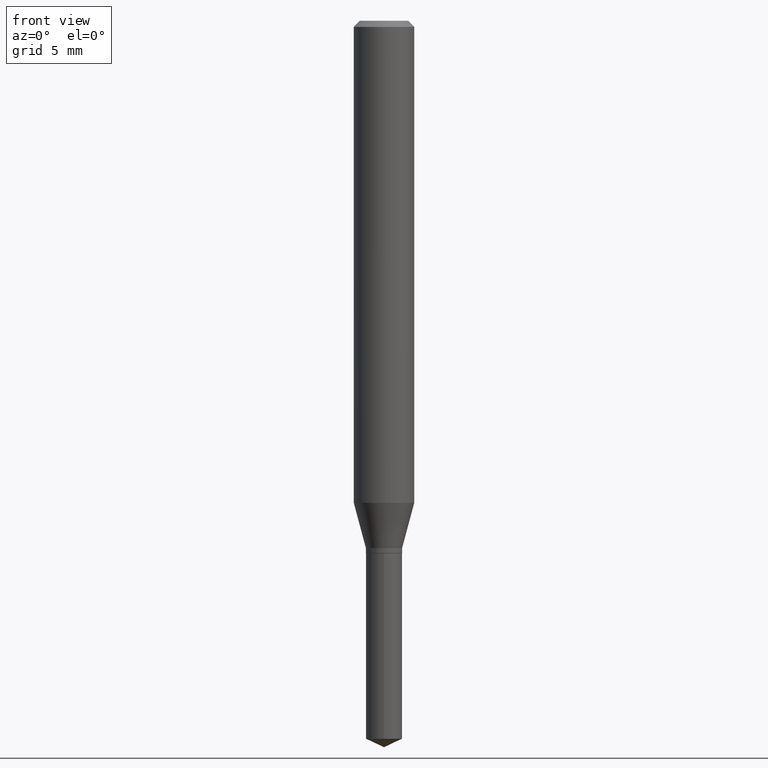
[diagram: clean part render]
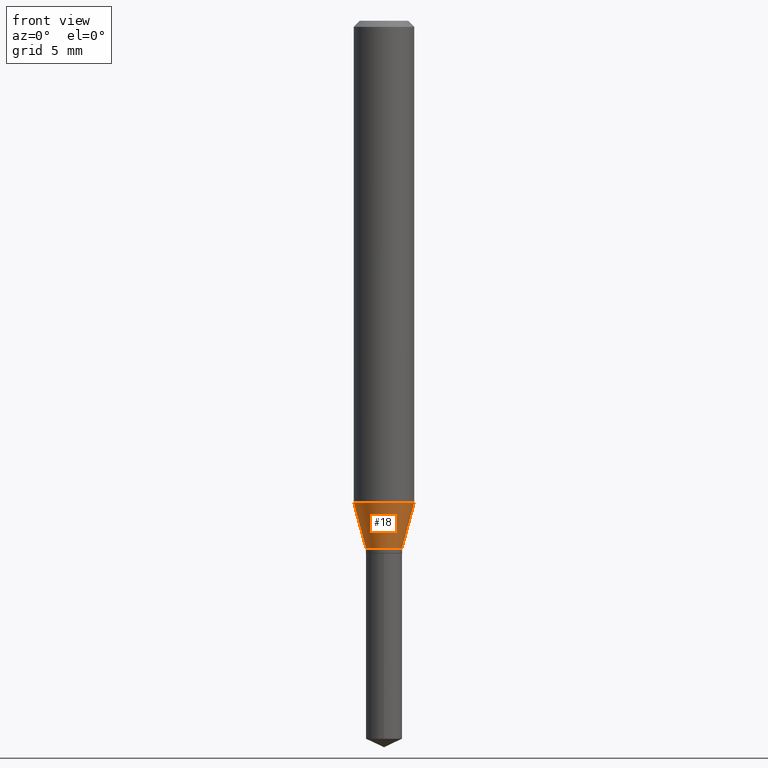
[diagram: same view with one face highlighted and labeled with its STEP entity id]
A machine part, front view. The second image highlights one B-rep face of the part: STEP entity #18.
In plain terms, the highlighted conical surface has half-angle 15 deg.
Its self-contained STEP definition (entity closure, byte-faithful):
#5 = EDGE_CURVE ( 'NONE', #321, #427, #157, .T. ) ;
#11 = CARTESIAN_POINT ( 'NONE',  ( 0.03740000000000000269, -4.062687685877884033E-15, -1.088800000000000212 ) ) ;
#18 = ADVANCED_FACE ( 'NONE', ( #256 ), #304, .T. ) ;
#23 = VECTOR ( 'NONE', #59, 39.37007874015747433 ) ;
#25 = LINE ( 'NONE', #398, #23 ) ;
#26 = AXIS2_PLACEMENT_3D ( 'NONE', #371, #95, #400 ) ;
#37 = ORIENTED_EDGE ( 'NONE', *, *, #5, .F. ) ;
#51 = DIRECTION ( 'NONE',  ( 0.2588190451025213501, 1.565188264969621968E-15, 0.9659258262890682012 ) ) ;
#57 = CARTESIAN_POINT ( 'NONE',  ( 2.433548428965882427E-29, -3.474462199401361914E-15, -0.9951255247300211382 ) ) ;
#59 = DIRECTION ( 'NONE',  ( -0.2588190451025213501, 5.211531920934551042E-15, 0.9659258262890682012 ) ) ;
#93 = ORIENTED_EDGE ( 'NONE', *, *, #480, .T. ) ;
#95 = DIRECTION ( 'NONE',  ( -2.445468806185136597E-29, 3.491481338843145583E-15, 1.000000000000000000 ) ) ;
#109 = VERTEX_POINT ( 'NONE', #185 ) ;
#157 = CIRCLE ( 'NONE', #326, 0.06250000000000012490 ) ;
#160 = VERTEX_POINT ( 'NONE', #11 ) ;
#183 = DIRECTION ( 'NONE',  ( 1.000000000000000000, -6.982962677686261977E-15, 0.000000000000000000 ) ) ;
#185 = CARTESIAN_POINT ( 'NONE',  ( -0.03740000000000000269, -3.554461323720950725E-15, -1.088800000000000212 ) ) ;
#200 = DIRECTION ( 'NONE',  ( -2.445468806185136597E-29, 3.491481338843145583E-15, 1.000000000000000000 ) ) ;
#203 = LINE ( 'NONE', #287, #333 ) ;
#229 = DIRECTION ( 'NONE',  ( -2.445468806185136597E-29, 3.491481338843145583E-15, 1.000000000000000000 ) ) ;
#236 = ORIENTED_EDGE ( 'NONE', *, *, #262, .F. ) ;
#237 = EDGE_CURVE ( 'NONE', #160, #427, #203, .T. ) ;
#239 = AXIS2_PLACEMENT_3D ( 'NONE', #268, #229, #183 ) ;
#256 = FACE_OUTER_BOUND ( 'NONE', #417, .T. ) ;
#260 = DIRECTION ( 'NONE',  ( 1.000000000000000000, -6.982962677686264344E-15, 0.000000000000000000 ) ) ;
#262 = EDGE_CURVE ( 'NONE', #109, #321, #25, .T. ) ;
#266 = CIRCLE ( 'NONE', #239, 0.03740000000000000269 ) ;
#268 = CARTESIAN_POINT ( 'NONE',  ( 2.662626436174376772E-29, -3.801524881732417633E-15, -1.088800000000000212 ) ) ;
#287 = CARTESIAN_POINT ( 'NONE',  ( 0.03740000000000000269, -4.062687685877884033E-15, -1.088800000000000212 ) ) ;
#304 = CONICAL_SURFACE ( 'NONE', #26, 0.03740000000000000269, 0.2617993877991500740 ) ;
#321 = VERTEX_POINT ( 'NONE', #461 ) ;
#326 = AXIS2_PLACEMENT_3D ( 'NONE', #57, #200, #260 ) ;
#333 = VECTOR ( 'NONE', #51, 39.37007874015747433 ) ;
#336 = CARTESIAN_POINT ( 'NONE',  ( 0.06250000000000012490, -3.910897366756753978E-15, -0.9951255247300211382 ) ) ;
#371 = CARTESIAN_POINT ( 'NONE',  ( 2.662626436174376772E-29, -3.801524881732417633E-15, -1.088800000000000212 ) ) ;
#398 = CARTESIAN_POINT ( 'NONE',  ( -0.03740000000000000269, -3.535781898558140243E-15, -1.088800000000000212 ) ) ;
#400 = DIRECTION ( 'NONE',  ( 1.000000000000000000, -6.982962677686261977E-15, 0.000000000000000000 ) ) ;
#417 = EDGE_LOOP ( 'NONE', ( #236, #93, #435, #37 ) ) ;
#427 = VERTEX_POINT ( 'NONE', #336 ) ;
#435 = ORIENTED_EDGE ( 'NONE', *, *, #237, .T. ) ;
#461 = CARTESIAN_POINT ( 'NONE',  ( -0.06250000000000012490, -3.030372989551298509E-15, -0.9951255247300211382 ) ) ;
#480 = EDGE_CURVE ( 'NONE', #109, #160, #266, .T. ) ;